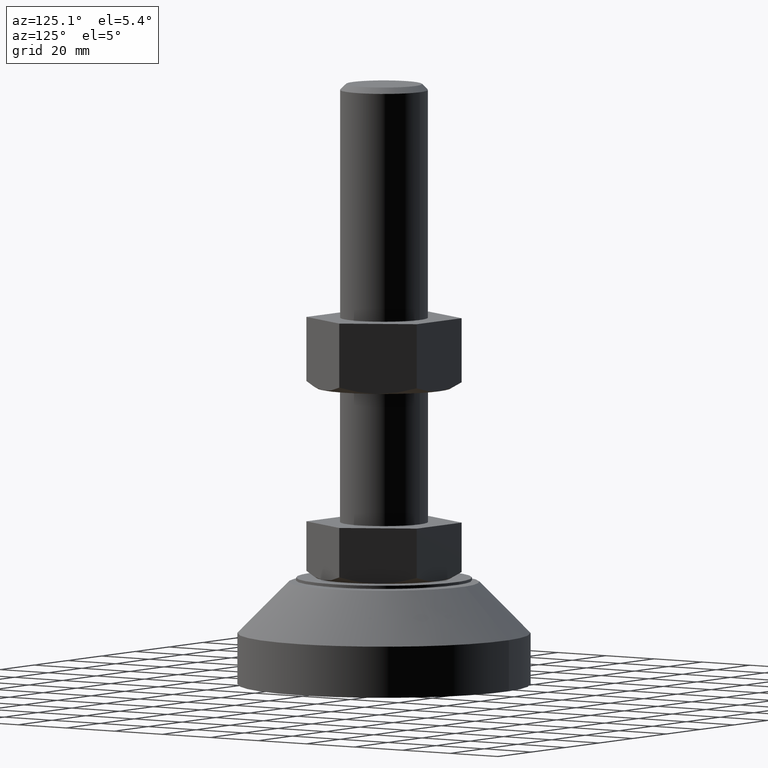
[diagram: clean part render]
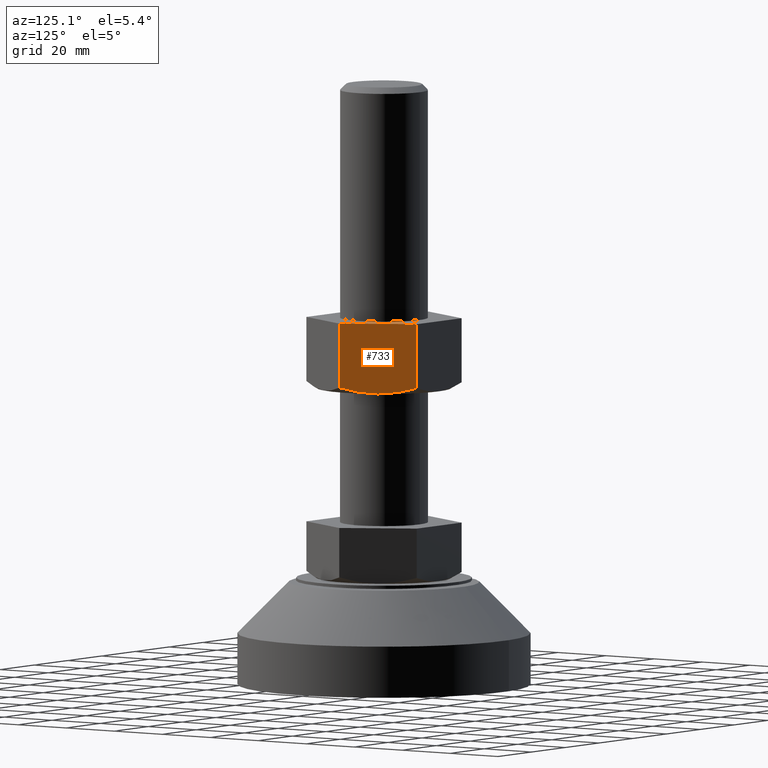
[diagram: same view with one face highlighted and labeled with its STEP entity id]
A machine part, auxiliary view. The second image highlights one B-rep face of the part: STEP entity #733.
In plain terms, the highlighted face is a freeform B-spline surface patch.
Its self-contained STEP definition (entity closure, byte-faithful):
#239=CARTESIAN_POINT('',(19.918584287582050,11.500000000311600,101.500000000000000));
#240=VERTEX_POINT('',#239);
#407=CARTESIAN_POINT('',(26.558112382653849,1.216839E-010,103.554277141584390));
#408=VERTEX_POINT('',#407);
#409=CARTESIAN_POINT('',(26.558112382653849,1.216839E-010,103.554277141584390));
#410=CARTESIAN_POINT('',(25.474003041745220,1.877732459533850,102.928366321781000));
#411=CARTESIAN_POINT('',(24.381989984364520,3.769154557445860,102.412502653961990));
#412=CARTESIAN_POINT('',(22.726890127022141,6.635871601962854,101.876523781285000));
#413=CARTESIAN_POINT('',(22.172336636370119,7.596386423286831,101.737595308040500));
#414=CARTESIAN_POINT('',(21.056771503124420,9.528601913220719,101.549658240473090));
#415=CARTESIAN_POINT('',(20.495754280060861,10.500312247488001,101.500727345650110));
#416=CARTESIAN_POINT('',(19.927044582921461,11.485346337690540,101.500002694858300));
#417=CARTESIAN_POINT('',(19.922814531755570,11.492673001228480,101.500000000535190));
#418=CARTESIAN_POINT('',(19.918584286962851,11.500000000137920,101.500000002169200));
#419=B_SPLINE_CURVE_WITH_KNOTS('',3,(#409,#410,#411,#412,#413,#414,#415,#416,#417,#418),.UNSPECIFIED.,.F.,.U.,(4,2,2,2,4),(0.0,0.250000000000000,0.375000000000000,0.500000000000000,0.500936671534781),.UNSPECIFIED.);
#420=EDGE_CURVE('',#408,#240,#419,.T.);
#455=CARTESIAN_POINT('',(13.279056191221340,23.000000000001101,103.554277141584390));
#456=VERTEX_POINT('',#455);
#475=CARTESIAN_POINT('',(19.918584287582050,11.500000000311600,101.500000000000000));
#476=CARTESIAN_POINT('',(19.781681653207620,11.737122317491970,101.500000055054200));
#477=CARTESIAN_POINT('',(19.644576224333051,11.974595886296250,101.502823723635400));
#478=CARTESIAN_POINT('',(19.365714085908440,12.457599278354991,101.514333341156300));
#479=CARTESIAN_POINT('',(19.224172057255451,12.702757263388330,101.523193135207800));
#480=CARTESIAN_POINT('',(18.800596107533760,13.436412329170560,101.558638544494200));
#481=CARTESIAN_POINT('',(18.519193246386191,13.923816382073390,101.594114884305300));
#482=CARTESIAN_POINT('',(17.677800598164499,15.381151197908300,101.734544082948200));
#483=CARTESIAN_POINT('',(17.120633329805258,16.346193215020872,101.873576611444510));
#484=CARTESIAN_POINT('',(15.459051112957470,19.224138035554141,102.410445339035310));
#485=CARTESIAN_POINT('',(14.364517101122500,21.119926554664509,102.927585993173300));
#486=CARTESIAN_POINT('',(13.279056191330991,23.000000000053351,103.554277141642200));
#487=B_SPLINE_CURVE_WITH_KNOTS('',3,(#475,#476,#477,#478,#479,#480,#481,#482,#483,#484,#485,#486),.UNSPECIFIED.,.F.,.U.,(4,2,2,2,2,4),(0.500936671556625,0.531250000000000,0.562500000000000,0.625000000000000,0.750000000000000,1.0),.UNSPECIFIED.);
#488=EDGE_CURVE('',#240,#456,#487,.T.);
#596=CARTESIAN_POINT('',(26.558112382723252,-1.136868E-013,125.500000000000000));
#597=VERTEX_POINT('',#596);
#603=CARTESIAN_POINT('',(13.279056191361621,23.000000000000352,125.500000000000000));
#604=VERTEX_POINT('',#603);
#605=CARTESIAN_POINT('',(26.558112382723252,-1.136868E-013,125.500000000000000));
#606=CARTESIAN_POINT('',(13.279056191361621,23.000000000000352,125.500000000000000));
#607=QUASI_UNIFORM_CURVE('',1,(#605,#606),.UNSPECIFIED.,.F.,.U.);
#608=EDGE_CURVE('',#597,#604,#607,.T.);
#705=CARTESIAN_POINT('',(13.279056191221340,23.000000000001101,103.554277141584390));
#706=CARTESIAN_POINT('',(13.279056191361621,23.000000000000352,125.500000000000000));
#707=QUASI_UNIFORM_CURVE('',1,(#705,#706),.UNSPECIFIED.,.F.,.U.);
#708=EDGE_CURVE('',#456,#604,#707,.T.);
#717=CARTESIAN_POINT('',(27.221401213746141,-1.148849955424737,100.301200046516600));
#718=CARTESIAN_POINT('',(12.615767004131270,24.148850572394341,100.301200046516600));
#719=CARTESIAN_POINT('',(27.221401213746141,-1.148849955424737,126.698800597213510));
#720=CARTESIAN_POINT('',(12.615767004131270,24.148850572394341,126.698800597213510));
#721=B_SPLINE_SURFACE_WITH_KNOTS('',1,1,((#717,#719),(#718,#720)),.UNSPECIFIED.,.F.,.F.,.U.,(2,2),(2,2),(0.0,29.211268419229761),(0.0,26.397600550696868),.UNSPECIFIED.);
#722=CARTESIAN_POINT('',(26.558112382653849,1.216839E-010,103.554277141584390));
#723=CARTESIAN_POINT('',(26.558112382723252,-1.136868E-013,125.500000000000000));
#724=QUASI_UNIFORM_CURVE('',1,(#722,#723),.UNSPECIFIED.,.F.,.U.);
#725=EDGE_CURVE('',#408,#597,#724,.T.);
#726=ORIENTED_EDGE('',*,*,#725,.F.);
#727=ORIENTED_EDGE('',*,*,#420,.T.);
#728=ORIENTED_EDGE('',*,*,#488,.T.);
#729=ORIENTED_EDGE('',*,*,#708,.T.);
#730=ORIENTED_EDGE('',*,*,#608,.F.);
#731=EDGE_LOOP('',(#726,#727,#728,#729,#730));
#732=FACE_OUTER_BOUND('',#731,.T.);
#733=ADVANCED_FACE('',(#732),#721,.T.);